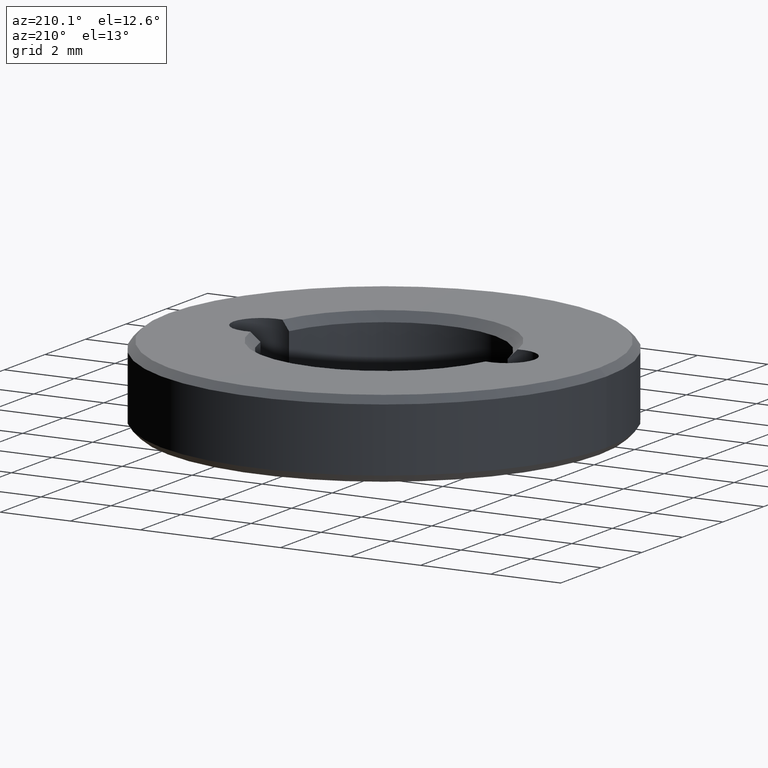
[diagram: clean part render]
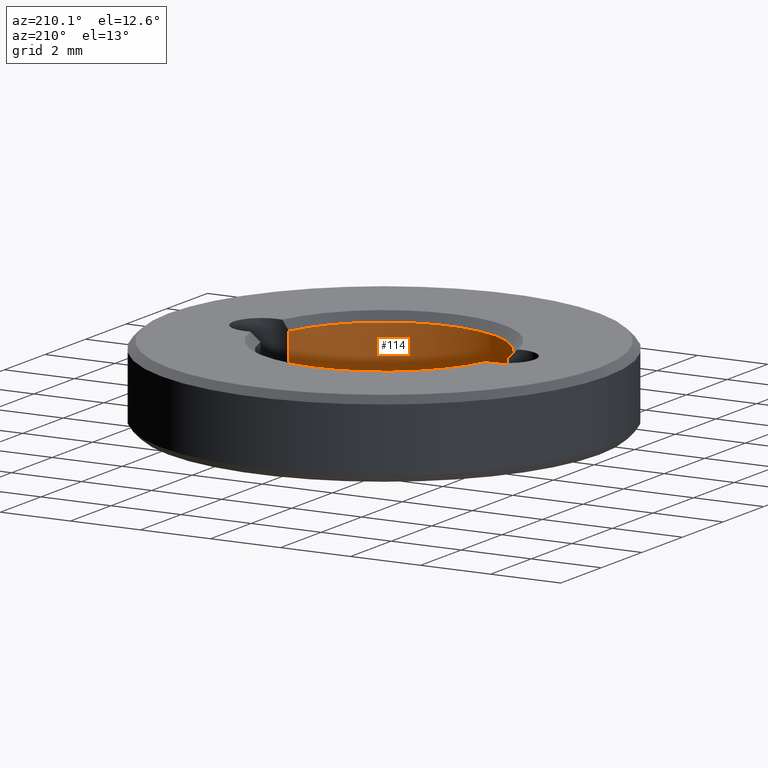
[diagram: same view with one face highlighted and labeled with its STEP entity id]
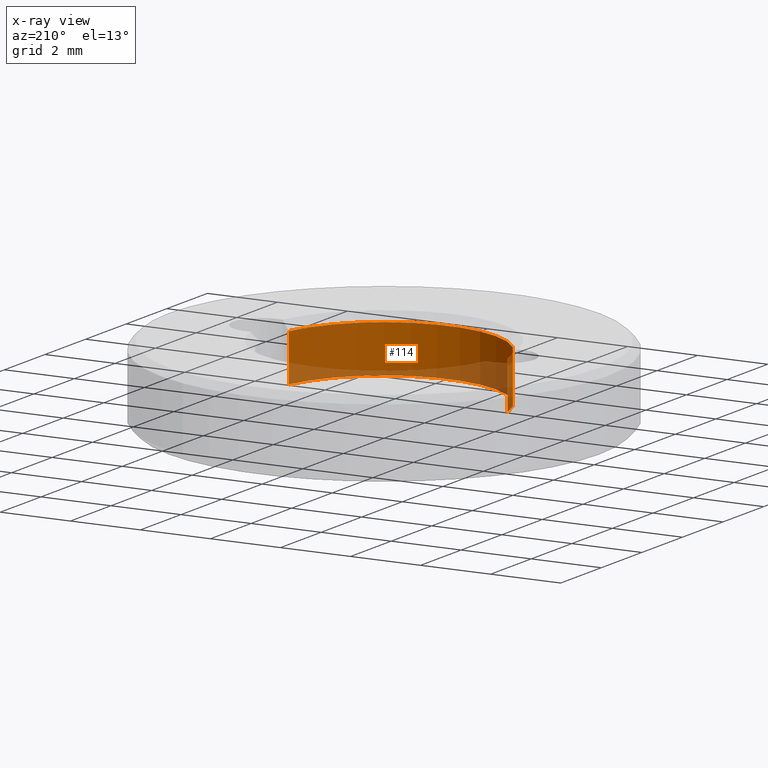
[diagram: x-ray of the same camera — body ghosted, the highlighted face saturated]
A machine part, auxiliary view. The second image highlights one B-rep face of the part: STEP entity #114.
The next image is the same camera in x-ray: the body ghosted, the highlighted face saturated — about 24% of this face is hidden behind the body in this view.
In plain terms, the highlighted cylindrical surface (partial cylindrical patch) has radius 3.2 mm, axis along (-0, -0, 1).
Its self-contained STEP definition (entity closure, byte-faithful):
#1 = LINE ( 'NONE', #384, #110 ) ;
#9 = DIRECTION ( 'NONE',  ( 0.000000000000000000, 0.000000000000000000, 1.000000000000000000 ) ) ;
#45 = CARTESIAN_POINT ( 'NONE',  ( -3.121428571428571441, -0.7047578828714082810, 0.6000000000000003109 ) ) ;
#56 = AXIS2_PLACEMENT_3D ( 'NONE', #252, #422, #467 ) ;
#96 = VERTEX_POINT ( 'NONE', #198 ) ;
#97 = CARTESIAN_POINT ( 'NONE',  ( 3.121428571428571441, -0.7047578828714075039, 1.400000000000000133 ) ) ;
#110 = VECTOR ( 'NONE', #537, 1000.000000000000000 ) ;
#114 = ADVANCED_FACE ( 'NONE', ( #313 ), #475, .F. ) ;
#123 = EDGE_CURVE ( 'NONE', #192, #96, #620, .T. ) ;
#189 = ORIENTED_EDGE ( 'NONE', *, *, #531, .T. ) ;
#192 = VERTEX_POINT ( 'NONE', #45 ) ;
#198 = CARTESIAN_POINT ( 'NONE',  ( 3.121428571428571441, -0.7047578828714075039, 0.6000000000000003109 ) ) ;
#246 = LINE ( 'NONE', #97, #542 ) ;
#252 = CARTESIAN_POINT ( 'NONE',  ( 0.000000000000000000, 0.000000000000000000, 0.6000000000000000888 ) ) ;
#290 = DIRECTION ( 'NONE',  ( 1.000000000000000000, 0.000000000000000000, 0.000000000000000000 ) ) ;
#308 = ORIENTED_EDGE ( 'NONE', *, *, #655, .T. ) ;
#313 = FACE_OUTER_BOUND ( 'NONE', #558, .T. ) ;
#341 = ORIENTED_EDGE ( 'NONE', *, *, #683, .T. ) ;
#346 = ORIENTED_EDGE ( 'NONE', *, *, #123, .F. ) ;
#352 = CIRCLE ( 'NONE', #476, 3.200000000000000178 ) ;
#360 = CARTESIAN_POINT ( 'NONE',  ( -3.121428571428571441, -0.7047578828714082810, 1.949999999999999956 ) ) ;
#365 = AXIS2_PLACEMENT_3D ( 'NONE', #366, #590, #578 ) ;
#366 = CARTESIAN_POINT ( 'NONE',  ( 0.000000000000000000, 0.000000000000000000, 0.6000000000000000888 ) ) ;
#384 = CARTESIAN_POINT ( 'NONE',  ( -3.121428571428571441, -0.7047578828714082810, 1.400000000000000133 ) ) ;
#422 = DIRECTION ( 'NONE',  ( 0.000000000000000000, 0.000000000000000000, 1.000000000000000000 ) ) ;
#467 = DIRECTION ( 'NONE',  ( 1.000000000000000000, 0.000000000000000000, 0.000000000000000000 ) ) ;
#475 = CYLINDRICAL_SURFACE ( 'NONE', #365, 3.200000000000000178 ) ;
#476 = AXIS2_PLACEMENT_3D ( 'NONE', #565, #9, #290 ) ;
#525 = DIRECTION ( 'NONE',  ( 0.000000000000000000, 0.000000000000000000, -1.000000000000000000 ) ) ;
#531 = EDGE_CURVE ( 'NONE', #672, #627, #352, .T. ) ;
#537 = DIRECTION ( 'NONE',  ( -0.000000000000000000, -0.000000000000000000, 1.000000000000000000 ) ) ;
#542 = VECTOR ( 'NONE', #525, 1000.000000000000000 ) ;
#558 = EDGE_LOOP ( 'NONE', ( #189, #308, #346, #341 ) ) ;
#565 = CARTESIAN_POINT ( 'NONE',  ( 0.000000000000000000, 0.000000000000000000, 1.949999999999999956 ) ) ;
#578 = DIRECTION ( 'NONE',  ( 1.000000000000000000, 0.000000000000000000, 0.000000000000000000 ) ) ;
#590 = DIRECTION ( 'NONE',  ( -0.000000000000000000, -0.000000000000000000, 1.000000000000000000 ) ) ;
#620 = CIRCLE ( 'NONE', #56, 3.200000000000000178 ) ;
#627 = VERTEX_POINT ( 'NONE', #697 ) ;
#655 = EDGE_CURVE ( 'NONE', #627, #96, #246, .T. ) ;
#672 = VERTEX_POINT ( 'NONE', #360 ) ;
#683 = EDGE_CURVE ( 'NONE', #192, #672, #1, .T. ) ;
#697 = CARTESIAN_POINT ( 'NONE',  ( 3.121428571428571441, -0.7047578828714076149, 1.949999999999999956 ) ) ;